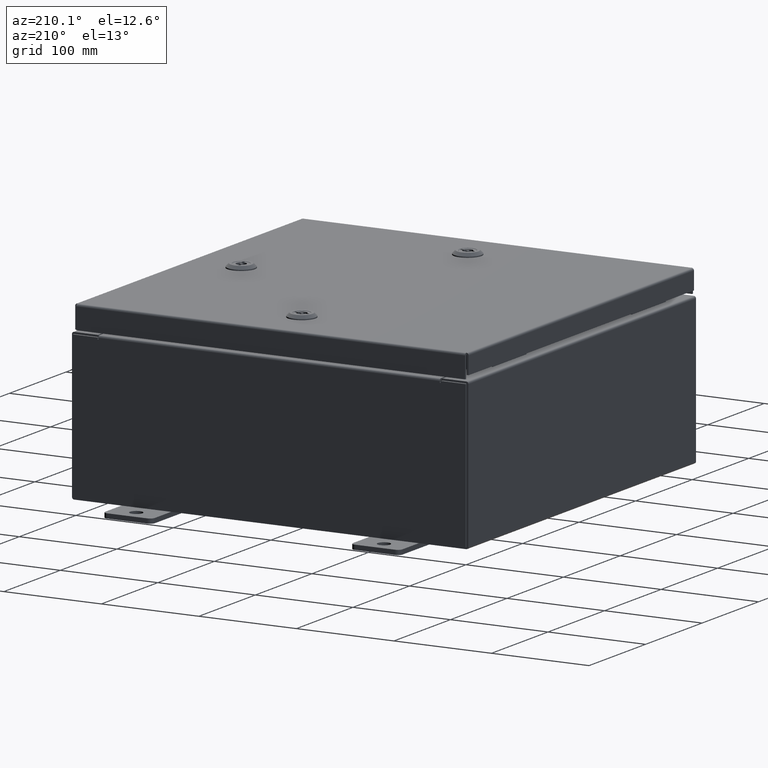
[diagram: clean part render]
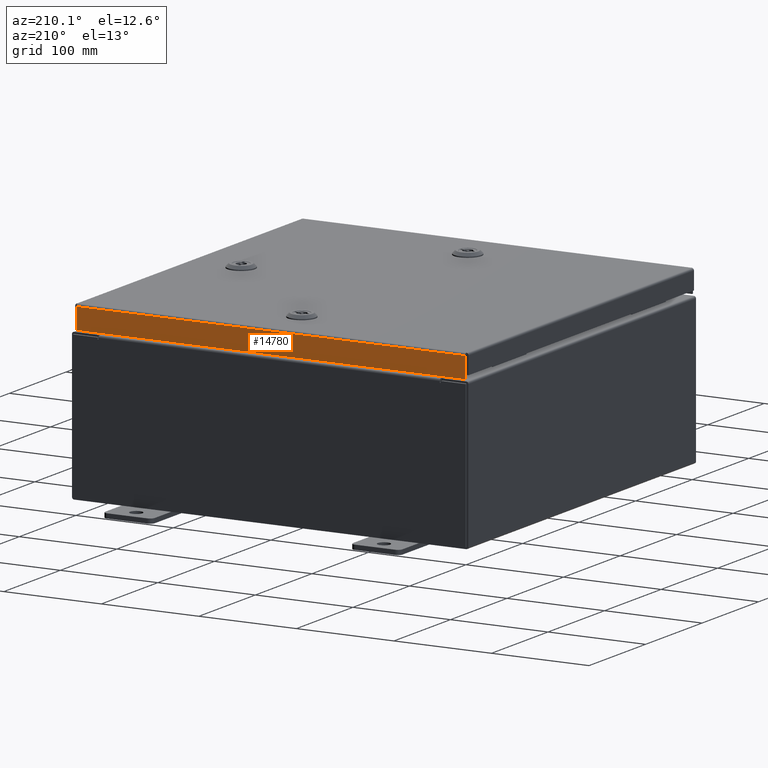
[diagram: same view with one face highlighted and labeled with its STEP entity id]
A machine part, auxiliary view. The second image highlights one B-rep face of the part: STEP entity #14780.
In plain terms, the highlighted planar face has unit normal (0, -1, -0).
Its self-contained STEP definition (entity closure, byte-faithful):
#1057 = CARTESIAN_POINT ( 'NONE',  ( -7.848657864376269400, 7.937500000000000000, -0.07469999999999972500 ) ) ;
#1339 = VERTEX_POINT ( 'NONE', #50351 ) ;
#3951 = VERTEX_POINT ( 'NONE', #51497 ) ;
#4285 = VECTOR ( 'NONE', #48364, 39.37007874015748100 ) ;
#4808 = CARTESIAN_POINT ( 'NONE',  ( -7.937500000000000000, 7.937500000000000000, -0.08769999999999997200 ) ) ;
#6610 = EDGE_CURVE ( 'NONE', #3951, #10465, #52189, .T. ) ;
#9348 = VECTOR ( 'NONE', #41310, 39.37007874015748100 ) ;
#10465 = VERTEX_POINT ( 'NONE', #49905 ) ;
#12638 = ORIENTED_EDGE ( 'NONE', *, *, #31033, .T. ) ;
#13478 = ORIENTED_EDGE ( 'NONE', *, *, #6610, .F. ) ;
#14495 = CARTESIAN_POINT ( 'NONE',  ( 7.848657864376269400, 7.937500000000000000, -0.08769999999999997200 ) ) ;
#14656 = DIRECTION ( 'NONE',  ( 1.000000000000000000, -0.0000000000000000000, 1.290636847400439300E-016 ) ) ;
#14780 = ADVANCED_FACE ( 'NONE', ( #39634 ), #45350, .F. ) ;
#15717 = CARTESIAN_POINT ( 'NONE',  ( -7.937500000000000000, 7.937500000000003600, -0.9377000000000018700 ) ) ;
#17136 = LINE ( 'NONE', #4808, #4285 ) ;
#19773 = VERTEX_POINT ( 'NONE', #14495 ) ;
#21257 = DIRECTION ( 'NONE',  ( 0.0000000000000000000, 3.798629886902790100E-015, -1.000000000000000000 ) ) ;
#22221 = LINE ( 'NONE', #26715, #9348 ) ;
#23764 = EDGE_CURVE ( 'NONE', #1339, #3951, #27640, .T. ) ;
#25143 = DIRECTION ( 'NONE',  ( -0.0000000000000000000, 3.798629886902790100E-015, -1.000000000000000000 ) ) ;
#26715 = CARTESIAN_POINT ( 'NONE',  ( 7.848657864376269400, 7.937500000000000000, 3.041243838330248100E-014 ) ) ;
#27640 = LINE ( 'NONE', #1057, #51812 ) ;
#31033 = EDGE_CURVE ( 'NONE', #19773, #10465, #22221, .T. ) ;
#39376 = VECTOR ( 'NONE', #14656, 39.37007874015748100 ) ;
#39634 = FACE_OUTER_BOUND ( 'NONE', #51292, .T. ) ;
#41310 = DIRECTION ( 'NONE',  ( 0.0000000000000000000, 3.798629886902790100E-015, -1.000000000000000000 ) ) ;
#45350 = PLANE ( 'NONE',  #54619 ) ;
#48364 = DIRECTION ( 'NONE',  ( -1.000000000000000000, -4.902651701673304100E-031, -1.880652595880180800E-045 ) ) ;
#49905 = CARTESIAN_POINT ( 'NONE',  ( 7.848657864376269400, 7.937500000000003600, -0.9376999999999996400 ) ) ;
#50224 = DIRECTION ( 'NONE',  ( 4.902651701673304100E-031, -1.000000000000000000, -3.798629886902790100E-015 ) ) ;
#50351 = CARTESIAN_POINT ( 'NONE',  ( -7.848657864376269400, 7.937500000000000000, -0.08769999999999997200 ) ) ;
#51292 = EDGE_LOOP ( 'NONE', ( #56491, #12638, #13478, #55506 ) ) ;
#51497 = CARTESIAN_POINT ( 'NONE',  ( -7.848657864376269400, 7.937500000000003600, -0.9377000000000018700 ) ) ;
#51812 = VECTOR ( 'NONE', #25143, 39.37007874015748100 ) ;
#52189 = LINE ( 'NONE', #15717, #39376 ) ;
#53862 = EDGE_CURVE ( 'NONE', #19773, #1339, #17136, .T. ) ;
#54619 = AXIS2_PLACEMENT_3D ( 'NONE', #59607, #50224, #21257 ) ;
#55506 = ORIENTED_EDGE ( 'NONE', *, *, #23764, .F. ) ;
#56491 = ORIENTED_EDGE ( 'NONE', *, *, #53862, .F. ) ;
#59607 = CARTESIAN_POINT ( 'NONE',  ( -3.891479788203184800E-030, 7.937500000000000000, 3.041243838330248100E-014 ) ) ;